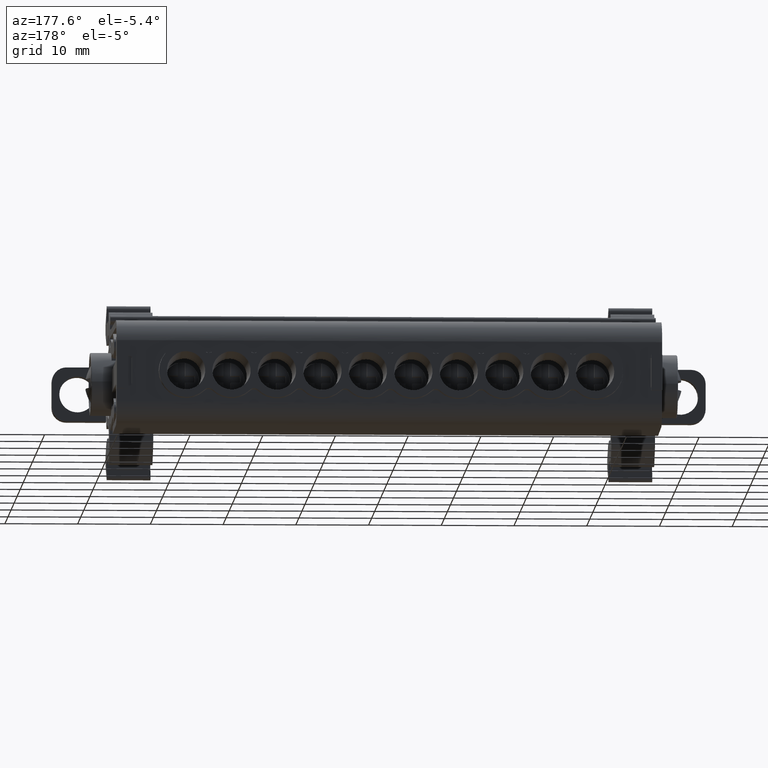
[diagram: clean part render]
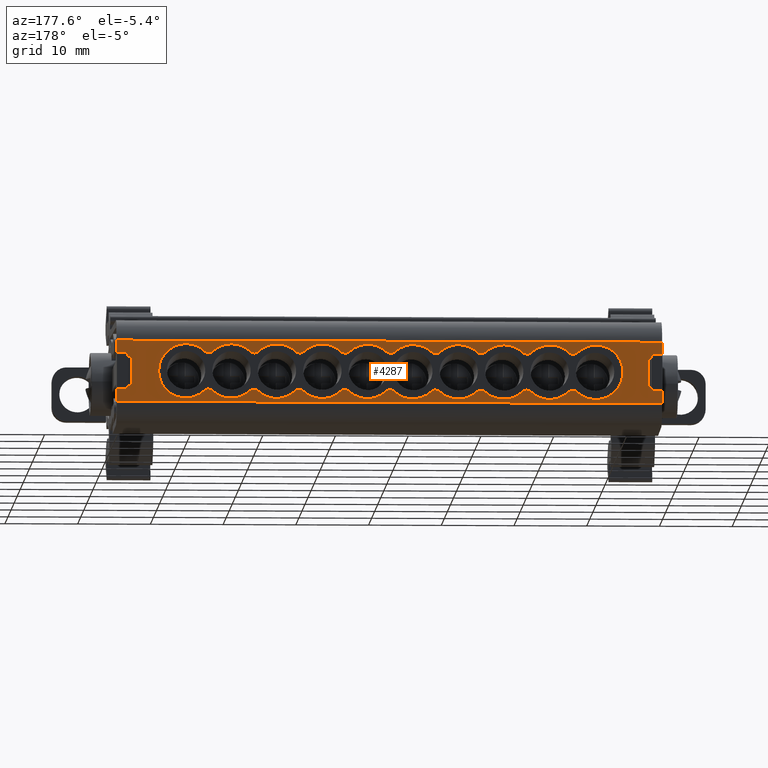
[diagram: same view with one face highlighted and labeled with its STEP entity id]
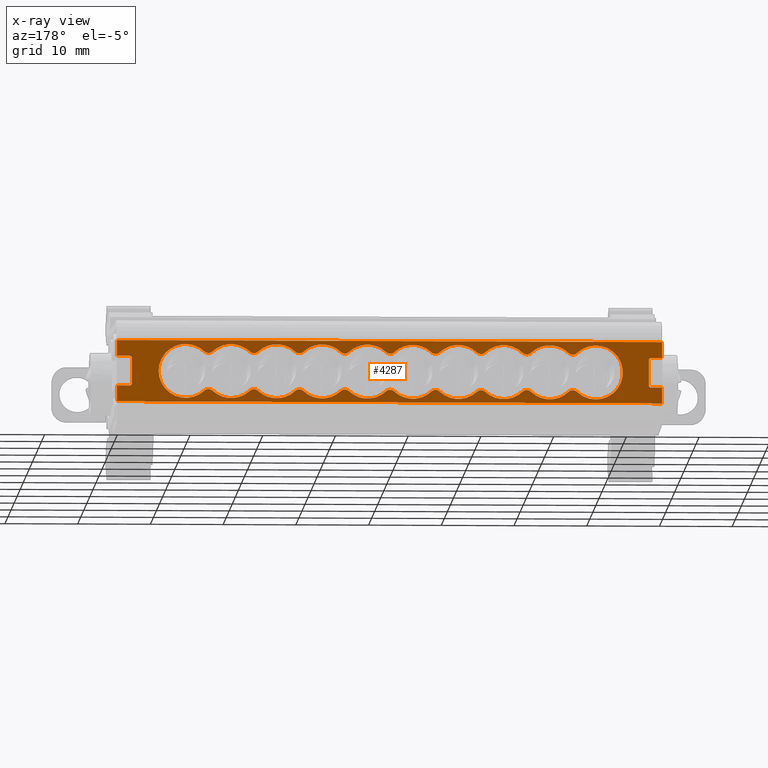
[diagram: x-ray of the same camera — body ghosted, the highlighted face saturated]
A machine part, auxiliary view. The second image highlights one B-rep face of the part: STEP entity #4287.
The next image is the same camera in x-ray: the body ghosted, the highlighted face saturated — about 0% of this face is hidden behind the body in this view.
In plain terms, the highlighted planar face has unit normal (-0, 1, -0).
Its self-contained STEP definition (entity closure, byte-faithful):
#583 = VECTOR ( 'NONE', #11730, 1000.000000000000000 ) ;
#595 = VECTOR ( 'NONE', #35188, 1000.000000000000000 ) ;
#615 = CIRCLE ( 'NONE', #646, 3.707075701093437200 ) ;
#616 = AXIS2_PLACEMENT_3D ( 'NONE', #34018, #33999, #34044 ) ;
#617 = VECTOR ( 'NONE', #35363, 1000.000000000000000 ) ;
#620 = AXIS2_PLACEMENT_3D ( 'NONE', #35354, #35378, #35355 ) ;
#622 = CIRCLE ( 'NONE', #636, 3.724056959419630400 ) ;
#626 = CIRCLE ( 'NONE', #632, 3.724056959419797000 ) ;
#627 = AXIS2_PLACEMENT_3D ( 'NONE', #35176, #35177, #35186 ) ;
#628 = AXIS2_PLACEMENT_3D ( 'NONE', #34038, #34002, #33993 ) ;
#630 = VECTOR ( 'NONE', #35222, 1000.000000000000000 ) ;
#631 = CIRCLE ( 'NONE', #620, 3.715292753566079600 ) ;
#632 = AXIS2_PLACEMENT_3D ( 'NONE', #34015, #34035, #34009 ) ;
#634 = CIRCLE ( 'NONE', #616, 3.724056959423349700 ) ;
#635 = CIRCLE ( 'NONE', #657, 3.724056959419797000 ) ;
#636 = AXIS2_PLACEMENT_3D ( 'NONE', #35307, #35327, #35301 ) ;
#637 = CIRCLE ( 'NONE', #640, 3.724056959423599300 ) ;
#638 = VECTOR ( 'NONE', #35317, 1000.000000000000000 ) ;
#639 = AXIS2_PLACEMENT_3D ( 'NONE', #35384, #35351, #35388 ) ;
#640 = AXIS2_PLACEMENT_3D ( 'NONE', #34047, #34054, #34080 ) ;
#644 = VECTOR ( 'NONE', #35318, 1000.000000000000000 ) ;
#646 = AXIS2_PLACEMENT_3D ( 'NONE', #35383, #35372, #35387 ) ;
#647 = VECTOR ( 'NONE', #35252, 1000.000000000000000 ) ;
#648 = VECTOR ( 'NONE', #35321, 1000.000000000000000 ) ;
#649 = CIRCLE ( 'NONE', #627, 3.724056959423599300 ) ;
#652 = CIRCLE ( 'NONE', #639, 3.724056959423183200 ) ;
#657 = AXIS2_PLACEMENT_3D ( 'NONE', #34055, #34094, #34083 ) ;
#658 = CIRCLE ( 'NONE', #660, 3.724056959423349700 ) ;
#660 = AXIS2_PLACEMENT_3D ( 'NONE', #34060, #34049, #34053 ) ;
#664 = CIRCLE ( 'NONE', #674, 3.724056959420019000 ) ;
#672 = VECTOR ( 'NONE', #35334, 1000.000000000000000 ) ;
#673 = CIRCLE ( 'NONE', #628, 3.724056959420019000 ) ;
#674 = AXIS2_PLACEMENT_3D ( 'NONE', #35305, #35342, #35338 ) ;
#678 = CIRCLE ( 'NONE', #692, 3.724056959419630400 ) ;
#681 = AXIS2_PLACEMENT_3D ( 'NONE', #34174, #34195, #34196 ) ;
#683 = CIRCLE ( 'NONE', #719, 3.724056959423349700 ) ;
#685 = CIRCLE ( 'NONE', #731, 3.724056959420213500 ) ;
#691 = AXIS2_PLACEMENT_3D ( 'NONE', #34127, #34117, #34120 ) ;
#692 = AXIS2_PLACEMENT_3D ( 'NONE', #34221, #34214, #34225 ) ;
#704 = AXIS2_PLACEMENT_3D ( 'NONE', #34162, #34163, #34164 ) ;
#711 = CIRCLE ( 'NONE', #691, 3.724056959423183200 ) ;
#718 = CIRCLE ( 'NONE', #681, 3.715292753566079600 ) ;
#719 = AXIS2_PLACEMENT_3D ( 'NONE', #34183, #34191, #34159 ) ;
#720 = CIRCLE ( 'NONE', #704, 3.724056959419630400 ) ;
#731 = AXIS2_PLACEMENT_3D ( 'NONE', #34213, #34302, #34271 ) ;
#753 = AXIS2_PLACEMENT_3D ( 'NONE', #30891, #30854, #30856 ) ;
#765 = VECTOR ( 'NONE', #31636, 1000.000000000000000 ) ;
#773 = VECTOR ( 'NONE', #34559, 1000.000000000000000 ) ;
#790 = VECTOR ( 'NONE', #34539, 1000.000000000000000 ) ;
#3277 = EDGE_LOOP ( 'NONE', ( #20054, #20087, #20138, #20033, #20093, #20108, #20036, #20045, #20124, #20132, #20148, #20154, #20151, #20066, #20048, #20091 ) ) ;
#3285 = EDGE_LOOP ( 'NONE', ( #20070, #20092, #20052, #20112, #20133, #20103, #20086, #20123, #20081, #20077, #20053, #20039, #20080, #20076, #20044, #20035, #20156, #20067, #20085, #20090, #20101, #20055, #20040, #20063, #20074, #20064, #20058, #20038, #20057, #20051, #20078, #20089, #20056, #20117, #20034, #20082, #20050 ) ) ;
#3859 = EDGE_CURVE ( 'NONE', #12450, #12512, #11732, .T. ) ;
#3936 = EDGE_CURVE ( 'NONE', #12488, #12498, #35138, .T. ) ;
#3941 = EDGE_CURVE ( 'NONE', #12508, #12473, #22539, .T. ) ;
#3946 = EDGE_CURVE ( 'NONE', #12455, #12488, #22573, .T. ) ;
#3950 = EDGE_CURVE ( 'NONE', #12456, #12429, #649, .T. ) ;
#3959 = EDGE_CURVE ( 'NONE', #12409, #12466, #22590, .T. ) ;
#3963 = EDGE_CURVE ( 'NONE', #12494, #12435, #22578, .T. ) ;
#3974 = EDGE_CURVE ( 'NONE', #12426, #12500, #35225, .T. ) ;
#3980 = EDGE_CURVE ( 'NONE', #12493, #12455, #35213, .T. ) ;
#3982 = EDGE_CURVE ( 'NONE', #12429, #12397, #22579, .T. ) ;
#3984 = EDGE_CURVE ( 'NONE', #12419, #12502, #22542, .T. ) ;
#3988 = EDGE_CURVE ( 'NONE', #12412, #12431, #22549, .T. ) ;
#3990 = EDGE_CURVE ( 'NONE', #12457, #12428, #22544, .T. ) ;
#3997 = EDGE_CURVE ( 'NONE', #12501, #12508, #35263, .T. ) ;
#3999 = EDGE_CURVE ( 'NONE', #12498, #12426, #22641, .T. ) ;
#4000 = EDGE_CURVE ( 'NONE', #12500, #12450, #35340, .T. ) ;
#4002 = EDGE_CURVE ( 'NONE', #12473, #12412, #35310, .T. ) ;
#4005 = EDGE_CURVE ( 'NONE', #12466, #12430, #622, .T. ) ;
#4012 = EDGE_CURVE ( 'NONE', #12512, #12501, #35333, .T. ) ;
#4018 = EDGE_CURVE ( 'NONE', #12459, #12494, #664, .T. ) ;
#4021 = EDGE_CURVE ( 'NONE', #12430, #12456, #22598, .T. ) ;
#4024 = EDGE_CURVE ( 'NONE', #12502, #12409, #615, .T. ) ;
#4028 = EDGE_CURVE ( 'NONE', #12435, #12419, #631, .T. ) ;
#4035 = EDGE_CURVE ( 'NONE', #12397, #12457, #652, .T. ) ;
#4047 = EDGE_CURVE ( 'NONE', #12431, #12477, #35353, .T. ) ;
#4074 = EDGE_CURVE ( 'NONE', #12445, #12394, #22654, .T. ) ;
#4076 = EDGE_CURVE ( 'NONE', #12443, #12445, #673, .T. ) ;
#4077 = EDGE_CURVE ( 'NONE', #12428, #12465, #626, .T. ) ;
#4078 = EDGE_CURVE ( 'NONE', #12468, #12443, #22607, .T. ) ;
#4083 = EDGE_CURVE ( 'NONE', #12463, #12697, #634, .T. ) ;
#4090 = EDGE_CURVE ( 'NONE', #12390, #12444, #22649, .T. ) ;
#4091 = EDGE_CURVE ( 'NONE', #12475, #12469, #637, .T. ) ;
#4097 = EDGE_CURVE ( 'NONE', #12427, #33610, #635, .T. ) ;
#4098 = EDGE_CURVE ( 'NONE', #12465, #12462, #22618, .T. ) ;
#4102 = EDGE_CURVE ( 'NONE', #12470, #12407, #658, .T. ) ;
#4105 = EDGE_CURVE ( 'NONE', #12697, #12427, #22619, .T. ) ;
#4108 = EDGE_CURVE ( 'NONE', #33610, #12459, #22604, .T. ) ;
#4110 = EDGE_CURVE ( 'NONE', #12486, #12463, #22622, .T. ) ;
#4113 = EDGE_CURVE ( 'NONE', #12462, #12449, #711, .T. ) ;
#4116 = EDGE_CURVE ( 'NONE', #12444, #12468, #718, .T. ) ;
#4117 = EDGE_CURVE ( 'NONE', #12408, #12390, #720, .T. ) ;
#4120 = EDGE_CURVE ( 'NONE', #12394, #12505, #683, .T. ) ;
#4121 = EDGE_CURVE ( 'NONE', #12449, #12475, #22653, .T. ) ;
#4125 = EDGE_CURVE ( 'NONE', #12407, #8644, #22624, .T. ) ;
#4126 = EDGE_CURVE ( 'NONE', #12469, #12406, #22597, .T. ) ;
#4132 = EDGE_CURVE ( 'NONE', #12420, #12408, #22637, .T. ) ;
#4134 = EDGE_CURVE ( 'NONE', #12406, #12420, #678, .T. ) ;
#4137 = EDGE_CURVE ( 'NONE', #12505, #12470, #22631, .T. ) ;
#4138 = EDGE_CURVE ( 'NONE', #8633, #12486, #685, .T. ) ;
#4186 = EDGE_CURVE ( 'NONE', #33588, #12594, #34564, .T. ) ;
#4191 = EDGE_CURVE ( 'NONE', #12594, #12493, #34529, .T. ) ;
#4197 = EDGE_CURVE ( 'NONE', #12477, #33588, #31579, .T. ) ;
#4287 = ADVANCED_FACE ( 'NONE', ( #30890, #30889 ), #30878, .T. ) ;
#4989 = CARTESIAN_POINT ( 'NONE',  ( -241.4840053093626900, -98.87567566785256200, 138.2073934196323800 ) ) ;
#4992 = CARTESIAN_POINT ( 'NONE',  ( -205.1537004680982100, -98.87567566785199300, 138.2178920726600200 ) ) ;
#5006 = CARTESIAN_POINT ( 'NONE',  ( -230.1477986165620600, -98.87567566785219200, 138.2046588341173400 ) ) ;
#5008 = CARTESIAN_POINT ( 'NONE',  ( -216.5151712813793700, -98.87567566785229200, 138.2178856403042500 ) ) ;
#5021 = CARTESIAN_POINT ( 'NONE',  ( -248.9422994930332900, -98.87567566785261900, 143.6148436092848900 ) ) ;
#5045 = CARTESIAN_POINT ( 'NONE',  ( -265.4801691519043600, -98.87567566785338600, 142.9740905490492400 ) ) ;
#5046 = CARTESIAN_POINT ( 'NONE',  ( -217.6537009105884100, -98.87567566785206500, 143.6351978517853400 ) ) ;
#5047 = CARTESIAN_POINT ( 'NONE',  ( -254.0965735445457800, -98.87567566785271800, 138.2382405971584900 ) ) ;
#5048 = CARTESIAN_POINT ( 'NONE',  ( -217.6537009197033700, -98.87567566785212100, 138.2178916465520000 ) ) ;
#5051 = CARTESIAN_POINT ( 'NONE',  ( -205.1537004676827400, -98.87567566785212100, 143.6351974338811300 ) ) ;
#5053 = CARTESIAN_POINT ( 'NONE',  ( -236.3847709200609300, -98.87567566785243400, 143.6362070554185400 ) ) ;
#5056 = CARTESIAN_POINT ( 'NONE',  ( -228.9893745243800000, -98.87567566785242000, 138.2057309191654300 ) ) ;
#5059 = CARTESIAN_POINT ( 'NONE',  ( -254.0965735348592000, -98.87567566785273200, 143.6148489190655400 ) ) ;
#5060 = CARTESIAN_POINT ( 'NONE',  ( -235.2217510796880300, -98.87567566785246200, 143.6339064248771000 ) ) ;
#5061 = CARTESIAN_POINT ( 'NONE',  ( -241.4840053490534000, -98.87567566785254800, 143.6456960501642800 ) ) ;
#5063 = CARTESIAN_POINT ( 'NONE',  ( -242.6448698447762500, -98.87567566785251900, 143.6456928938420400 ) ) ;
#5065 = CARTESIAN_POINT ( 'NONE',  ( -255.2722999505552900, -98.87567566785251900, 138.2382454590466500 ) ) ;
#5066 = CARTESIAN_POINT ( 'NONE',  ( -242.6448698414794500, -98.87567566785242000, 138.2073966161767100 ) ) ;
#5067 = CARTESIAN_POINT ( 'NONE',  ( -210.2651713582998000, -98.87567566785222100, 138.2178857128817500 ) ) ;
#5073 = CARTESIAN_POINT ( 'NONE',  ( -236.3948703857649600, -98.87567566785229200, 138.2073961068388100 ) ) ;
#5074 = CARTESIAN_POINT ( 'NONE',  ( -222.7703735986051200, -98.87567566785240600, 138.2228037026283100 ) ) ;
#5075 = CARTESIAN_POINT ( 'NONE',  ( -265.1401691519033600, -98.87567566785340000, 142.6338833039884000 ) ) ;
#5076 = CARTESIAN_POINT ( 'NONE',  ( -248.9422994889987700, -98.87567566785249100, 138.2382459015163100 ) ) ;
#5082 = CARTESIAN_POINT ( 'NONE',  ( -193.7278296200914300, -98.87567566785199300, 142.9740905490496300 ) ) ;
#5086 = CARTESIAN_POINT ( 'NONE',  ( -223.9101567309762100, -98.87567566785223500, 138.2238500402457900 ) ) ;
#5089 = CARTESIAN_POINT ( 'NONE',  ( -265.1401691519033100, -98.87567566785341500, 139.2208049815486400 ) ) ;
#5093 = CARTESIAN_POINT ( 'NONE',  ( -235.2340052626522900, -98.87567566785250500, 138.2073933759210400 ) ) ;
#5095 = CARTESIAN_POINT ( 'NONE',  ( -193.7278296200914300, -98.87567566785203600, 138.8805977364864600 ) ) ;
#5096 = CARTESIAN_POINT ( 'NONE',  ( -247.7665732827941800, -98.87567566785266100, 143.6148491607074200 ) ) ;
#5100 = CARTESIAN_POINT ( 'NONE',  ( -228.9995021202350100, -98.87567566785237700, 143.6379062250219600 ) ) ;
#5101 = CARTESIAN_POINT ( 'NONE',  ( -255.2722999467670200, -98.87567566785269000, 143.6148440442534600 ) ) ;
#5102 = CARTESIAN_POINT ( 'NONE',  ( -211.4037009038758000, -98.87567566785215000, 143.6351978454457600 ) ) ;
#5103 = CARTESIAN_POINT ( 'NONE',  ( -223.9101567366387800, -98.87567566785232000, 143.6292394720277100 ) ) ;
#5105 = CARTESIAN_POINT ( 'NONE',  ( -191.9827637199364900, -98.87567566785203600, 136.6995057816686800 ) ) ;
#5116 = CARTESIAN_POINT ( 'NONE',  ( -191.9827637199364900, -98.87567566785203600, 138.8805977364866400 ) ) ;
#5118 = CARTESIAN_POINT ( 'NONE',  ( -247.7665732730046100, -98.87567566785259000, 138.2382403368458800 ) ) ;
#5123 = CARTESIAN_POINT ( 'NONE',  ( -191.9827637199364600, -98.87567566785203600, 142.9740905490488700 ) ) ;
#5126 = CARTESIAN_POINT ( 'NONE',  ( -266.9752350520587400, -98.87567566785284600, 138.8805977364864400 ) ) ;
#5133 = CARTESIAN_POINT ( 'NONE',  ( -266.9752350520586800, -98.87567566785284600, 136.6995057816686800 ) ) ;
#5137 = CARTESIAN_POINT ( 'NONE',  ( -222.7703735756510900, -98.87567566785232000, 143.6302858260526400 ) ) ;
#5138 = CARTESIAN_POINT ( 'NONE',  ( -194.0678296200914000, -98.87567566785205000, 139.2208049815488700 ) ) ;
#5140 = CARTESIAN_POINT ( 'NONE',  ( -266.9752350520587900, -98.87567566785284600, 142.9740905490486400 ) ) ;
#5149 = CARTESIAN_POINT ( 'NONE',  ( -211.4037004520035600, -98.87567566785210700, 138.2178920878462200 ) ) ;
#5154 = CARTESIAN_POINT ( 'NONE',  ( -230.1600825299446200, -98.87567566785239100, 143.6366673830999300 ) ) ;
#5158 = CARTESIAN_POINT ( 'NONE',  ( -265.4801691519033400, -98.87567566785341500, 138.8805977364866600 ) ) ;
#5159 = CARTESIAN_POINT ( 'NONE',  ( -204.0151739259856600, -98.87567566785215000, 143.6352013713300000 ) ) ;
#5169 = CARTESIAN_POINT ( 'NONE',  ( -194.0678296200913500, -98.87567566785203600, 142.6338833039886300 ) ) ;
#8633 = VERTEX_POINT ( 'NONE', #29388 ) ;
#8644 = VERTEX_POINT ( 'NONE', #29369 ) ;
#11722 = CARTESIAN_POINT ( 'NONE',  ( -116.7027637199363400, -98.87567566785119800, 136.6995057816686800 ) ) ;
#11730 = DIRECTION ( 'NONE',  ( -1.000000000000000000, -1.100060687039804000E-014, 0.0000000000000000000 ) ) ;
#11732 = LINE ( 'NONE', #11722, #583 ) ;
#12088 = AXIS2_PLACEMENT_3D ( 'NONE', #32483, #32501, #32484 ) ;
#12098 = CIRCLE ( 'NONE', #12088, 3.724056959420213500 ) ;
#12390 = VERTEX_POINT ( 'NONE', #5006 ) ;
#12394 = VERTEX_POINT ( 'NONE', #5008 ) ;
#12397 = VERTEX_POINT ( 'NONE', #5021 ) ;
#12406 = VERTEX_POINT ( 'NONE', #4989 ) ;
#12407 = VERTEX_POINT ( 'NONE', #4992 ) ;
#12408 = VERTEX_POINT ( 'NONE', #5093 ) ;
#12409 = VERTEX_POINT ( 'NONE', #5060 ) ;
#12412 = VERTEX_POINT ( 'NONE', #5075 ) ;
#12419 = VERTEX_POINT ( 'NONE', #5100 ) ;
#12420 = VERTEX_POINT ( 'NONE', #5073 ) ;
#12426 = VERTEX_POINT ( 'NONE', #5095 ) ;
#12427 = VERTEX_POINT ( 'NONE', #5102 ) ;
#12428 = VERTEX_POINT ( 'NONE', #5101 ) ;
#12429 = VERTEX_POINT ( 'NONE', #5096 ) ;
#12430 = VERTEX_POINT ( 'NONE', #5061 ) ;
#12431 = VERTEX_POINT ( 'NONE', #5045 ) ;
#12435 = VERTEX_POINT ( 'NONE', #5103 ) ;
#12443 = VERTEX_POINT ( 'NONE', #5074 ) ;
#12444 = VERTEX_POINT ( 'NONE', #5056 ) ;
#12445 = VERTEX_POINT ( 'NONE', #5048 ) ;
#12449 = VERTEX_POINT ( 'NONE', #5076 ) ;
#12450 = VERTEX_POINT ( 'NONE', #5105 ) ;
#12455 = VERTEX_POINT ( 'NONE', #5082 ) ;
#12456 = VERTEX_POINT ( 'NONE', #5063 ) ;
#12457 = VERTEX_POINT ( 'NONE', #5059 ) ;
#12459 = VERTEX_POINT ( 'NONE', #5046 ) ;
#12462 = VERTEX_POINT ( 'NONE', #5047 ) ;
#12463 = VERTEX_POINT ( 'NONE', #5051 ) ;
#12465 = VERTEX_POINT ( 'NONE', #5065 ) ;
#12466 = VERTEX_POINT ( 'NONE', #5053 ) ;
#12468 = VERTEX_POINT ( 'NONE', #5086 ) ;
#12469 = VERTEX_POINT ( 'NONE', #5066 ) ;
#12470 = VERTEX_POINT ( 'NONE', #5067 ) ;
#12473 = VERTEX_POINT ( 'NONE', #5089 ) ;
#12475 = VERTEX_POINT ( 'NONE', #5118 ) ;
#12477 = VERTEX_POINT ( 'NONE', #5140 ) ;
#12486 = VERTEX_POINT ( 'NONE', #5159 ) ;
#12488 = VERTEX_POINT ( 'NONE', #5169 ) ;
#12493 = VERTEX_POINT ( 'NONE', #5123 ) ;
#12494 = VERTEX_POINT ( 'NONE', #5137 ) ;
#12498 = VERTEX_POINT ( 'NONE', #5138 ) ;
#12500 = VERTEX_POINT ( 'NONE', #5116 ) ;
#12501 = VERTEX_POINT ( 'NONE', #5126 ) ;
#12502 = VERTEX_POINT ( 'NONE', #5154 ) ;
#12505 = VERTEX_POINT ( 'NONE', #5149 ) ;
#12508 = VERTEX_POINT ( 'NONE', #5158 ) ;
#12512 = VERTEX_POINT ( 'NONE', #5133 ) ;
#12594 = VERTEX_POINT ( 'NONE', #16395 ) ;
#12697 = VERTEX_POINT ( 'NONE', #15829 ) ;
#15829 = CARTESIAN_POINT ( 'NONE',  ( -210.2651713448934500, -98.87567566785220700, 143.6352038067074400 ) ) ;
#16395 = CARTESIAN_POINT ( 'NONE',  ( -191.9827637199364600, -98.87567566785203600, 145.1542328703783100 ) ) ;
#20033 = ORIENTED_EDGE ( 'NONE', *, *, #4012, .T. ) ;
#20034 = ORIENTED_EDGE ( 'NONE', *, *, #4110, .T. ) ;
#20035 = ORIENTED_EDGE ( 'NONE', *, *, #4098, .T. ) ;
#20036 = ORIENTED_EDGE ( 'NONE', *, *, #4002, .T. ) ;
#20038 = ORIENTED_EDGE ( 'NONE', *, *, #4074, .T. ) ;
#20039 = ORIENTED_EDGE ( 'NONE', *, *, #3982, .T. ) ;
#20040 = ORIENTED_EDGE ( 'NONE', *, *, #4117, .T. ) ;
#20044 = ORIENTED_EDGE ( 'NONE', *, *, #4077, .T. ) ;
#20045 = ORIENTED_EDGE ( 'NONE', *, *, #3988, .T. ) ;
#20048 = ORIENTED_EDGE ( 'NONE', *, *, #3936, .T. ) ;
#20050 = ORIENTED_EDGE ( 'NONE', *, *, #4105, .T. ) ;
#20051 = ORIENTED_EDGE ( 'NONE', *, *, #4137, .T. ) ;
#20052 = ORIENTED_EDGE ( 'NONE', *, *, #4018, .T. ) ;
#20053 = ORIENTED_EDGE ( 'NONE', *, *, #3950, .T. ) ;
#20054 = ORIENTED_EDGE ( 'NONE', *, *, #3974, .T. ) ;
#20055 = ORIENTED_EDGE ( 'NONE', *, *, #4132, .T. ) ;
#20056 = ORIENTED_EDGE ( 'NONE', *, *, #36934, .T. ) ;
#20057 = ORIENTED_EDGE ( 'NONE', *, *, #4120, .T. ) ;
#20058 = ORIENTED_EDGE ( 'NONE', *, *, #4076, .T. ) ;
#20063 = ORIENTED_EDGE ( 'NONE', *, *, #4090, .T. ) ;
#20064 = ORIENTED_EDGE ( 'NONE', *, *, #4078, .T. ) ;
#20066 = ORIENTED_EDGE ( 'NONE', *, *, #3946, .T. ) ;
#20067 = ORIENTED_EDGE ( 'NONE', *, *, #4121, .T. ) ;
#20070 = ORIENTED_EDGE ( 'NONE', *, *, #4097, .T. ) ;
#20074 = ORIENTED_EDGE ( 'NONE', *, *, #4116, .T. ) ;
#20076 = ORIENTED_EDGE ( 'NONE', *, *, #3990, .T. ) ;
#20077 = ORIENTED_EDGE ( 'NONE', *, *, #4021, .T. ) ;
#20078 = ORIENTED_EDGE ( 'NONE', *, *, #4102, .T. ) ;
#20080 = ORIENTED_EDGE ( 'NONE', *, *, #4035, .T. ) ;
#20081 = ORIENTED_EDGE ( 'NONE', *, *, #4005, .T. ) ;
#20082 = ORIENTED_EDGE ( 'NONE', *, *, #4083, .T. ) ;
#20085 = ORIENTED_EDGE ( 'NONE', *, *, #4091, .T. ) ;
#20086 = ORIENTED_EDGE ( 'NONE', *, *, #4024, .T. ) ;
#20087 = ORIENTED_EDGE ( 'NONE', *, *, #4000, .T. ) ;
#20089 = ORIENTED_EDGE ( 'NONE', *, *, #4125, .T. ) ;
#20090 = ORIENTED_EDGE ( 'NONE', *, *, #4126, .T. ) ;
#20091 = ORIENTED_EDGE ( 'NONE', *, *, #3999, .T. ) ;
#20092 = ORIENTED_EDGE ( 'NONE', *, *, #4108, .T. ) ;
#20093 = ORIENTED_EDGE ( 'NONE', *, *, #3997, .T. ) ;
#20101 = ORIENTED_EDGE ( 'NONE', *, *, #4134, .T. ) ;
#20103 = ORIENTED_EDGE ( 'NONE', *, *, #3984, .T. ) ;
#20108 = ORIENTED_EDGE ( 'NONE', *, *, #3941, .T. ) ;
#20112 = ORIENTED_EDGE ( 'NONE', *, *, #3963, .T. ) ;
#20117 = ORIENTED_EDGE ( 'NONE', *, *, #4138, .T. ) ;
#20123 = ORIENTED_EDGE ( 'NONE', *, *, #3959, .T. ) ;
#20124 = ORIENTED_EDGE ( 'NONE', *, *, #4047, .T. ) ;
#20132 = ORIENTED_EDGE ( 'NONE', *, *, #4197, .T. ) ;
#20133 = ORIENTED_EDGE ( 'NONE', *, *, #4028, .T. ) ;
#20138 = ORIENTED_EDGE ( 'NONE', *, *, #3859, .T. ) ;
#20148 = ORIENTED_EDGE ( 'NONE', *, *, #4186, .T. ) ;
#20151 = ORIENTED_EDGE ( 'NONE', *, *, #3980, .T. ) ;
#20154 = ORIENTED_EDGE ( 'NONE', *, *, #4191, .T. ) ;
#20156 = ORIENTED_EDGE ( 'NONE', *, *, #4113, .T. ) ;
#21342 = CARTESIAN_POINT ( 'NONE',  ( -266.9752350520587900, -98.87567566785284600, 145.1542328703783100 ) ) ;
#21343 = CARTESIAN_POINT ( 'NONE',  ( -216.5151740246833500, -98.87567566785227800, 143.6352012782039900 ) ) ;
#22539 = B_SPLINE_CURVE_WITH_KNOTS ( 'NONE', 3,
 ( #35162, #35178, #35147, #35158, #35167, #35148, #35163, #35140, #35150, #35143, #35153 ),
 .UNSPECIFIED., .F., .F.,
 ( 4, 2, 1, 2, 2, 4 ),
 ( 0.0000000000000000000, 0.4999999999998796500, 0.6249999999999569200, 0.6874999999999126300, 0.7499999999998685500, 1.000000000000000000 ),
 .UNSPECIFIED. ) ;
#22542 = B_SPLINE_CURVE_WITH_KNOTS ( 'NONE', 3,
 ( #35293, #35291, #35281, #35256, #35253, #35257, #35250, #35290 ),
 .UNSPECIFIED., .F., .F.,
 ( 4, 2, 2, 4 ),
 ( 0.0000000000000000000, 0.0003176505206342319000, 0.0006353010412684638100, 0.001270602082536927600 ),
 .UNSPECIFIED. ) ;
#22544 = B_SPLINE_CURVE_WITH_KNOTS ( 'NONE', 3,
 ( #35266, #35242, #35251, #35264, #35261, #35275, #35269, #35254 ),
 .UNSPECIFIED., .F., .F.,
 ( 4, 2, 2, 4 ),
 ( 0.0000000000000000000, 0.0003228451615200196800, 0.0006456903230400393600, 0.001291380646080078700 ),
 .UNSPECIFIED. ) ;
#22549 = B_SPLINE_CURVE_WITH_KNOTS ( 'NONE', 3,
 ( #35278, #35273, #35258, #35292, #35260, #35246, #35265, #35282, #35259, #35268, #35284 ),
 .UNSPECIFIED., .F., .F.,
 ( 4, 2, 1, 2, 2, 4 ),
 ( 0.0000000000000000000, 0.5000000000000988100, 0.6250000000000702800, 0.6875000000001407800, 0.7500000000002111600, 1.000000000000000000 ),
 .UNSPECIFIED. ) ;
#22573 = B_SPLINE_CURVE_WITH_KNOTS ( 'NONE', 3,
 ( #35151, #35154, #35182, #35156, #35157, #35164, #35165, #35168, #35190, #35185, #35175 ),
 .UNSPECIFIED., .F., .F.,
 ( 4, 2, 1, 2, 2, 4 ),
 ( 0.0000000000000000000, 0.5000000000000124300, 0.6250000000000958100, 0.6875000000001158000, 0.7500000000001357800, 1.000000000000000000 ),
 .UNSPECIFIED. ) ;
#22578 = B_SPLINE_CURVE_WITH_KNOTS ( 'NONE', 3,
 ( #35224, #35238, #35199, #35203, #35218, #35210, #35220, #35201 ),
 .UNSPECIFIED., .F., .F.,
 ( 4, 2, 2, 4 ),
 ( 0.0000000000000000000, 0.0003123925059088812300, 0.0006247850118177624700, 0.001249570023635608200 ),
 .UNSPECIFIED. ) ;
#22579 = B_SPLINE_CURVE_WITH_KNOTS ( 'NONE', 3,
 ( #35207, #35215, #35274, #35289, #35283, #35247, #35255, #35245 ),
 .UNSPECIFIED., .F., .F.,
 ( 4, 2, 2, 4 ),
 ( 0.0000000000000000000, 0.0003228450872861191900, 0.0006456901745722383700, 0.001291380349144476700 ),
 .UNSPECIFIED. ) ;
#22590 = B_SPLINE_CURVE_WITH_KNOTS ( 'NONE', 3,
 ( #35211, #35239, #35195, #35234, #35228, #35198, #35193, #35231 ),
 .UNSPECIFIED., .F., .F.,
 ( 4, 2, 2, 4 ),
 ( 0.0000000000000000000, 0.0003184968925821865300, 0.0006369937851643730600, 0.001273987570328746100 ),
 .UNSPECIFIED. ) ;
#22597 = B_SPLINE_CURVE_WITH_KNOTS ( 'NONE', 3,
 ( #34200, #34177, #34155, #34185, #34189, #34190, #34193, #34194 ),
 .UNSPECIFIED., .F., .F.,
 ( 4, 2, 2, 4 ),
 ( 0.0000000000000000000, 0.0003177633632545543500, 0.0006355267265091087000, 0.001271053453018217400 ),
 .UNSPECIFIED. ) ;
#22598 = B_SPLINE_CURVE_WITH_KNOTS ( 'NONE', 3,
 ( #35319, #35336, #35337, #35360, #35390, #35344, #35389, #35386 ),
 .UNSPECIFIED., .F., .F.,
 ( 4, 2, 2, 4 ),
 ( 0.0000000000000000000, 0.0003177633299902152600, 0.0006355266599804305200, 0.001271053319960944100 ),
 .UNSPECIFIED. ) ;
#22604 = B_SPLINE_CURVE_WITH_KNOTS ( 'NONE', 3,
 ( #34103, #34141, #34135, #34102, #34118, #34119, #34099, #34112 ),
 .UNSPECIFIED., .F., .F.,
 ( 4, 2, 2, 4 ),
 ( 0.0000000000000000000, 0.0003119808182244836700, 0.0006239616364489673400, 0.001247923272897934700 ),
 .UNSPECIFIED. ) ;
#22607 = B_SPLINE_CURVE_WITH_KNOTS ( 'NONE', 3,
 ( #34043, #34004, #34022, #34013, #34008, #34007, #34019, #34041 ),
 .UNSPECIFIED., .F., .F.,
 ( 4, 2, 2, 4 ),
 ( 0.0000000000000000000, 0.0003123931830961399200, 0.0006247863661922798500, 0.001249572732384642700 ),
 .UNSPECIFIED. ) ;
#22618 = B_SPLINE_CURVE_WITH_KNOTS ( 'NONE', 3,
 ( #34095, #34078, #34097, #34070, #34076, #34082, #34061, #34052 ),
 .UNSPECIFIED., .F., .F.,
 ( 4, 2, 2, 4 ),
 ( 0.0000000000000000000, 0.0003228452258674550500, 0.0006456904517349100900, 0.001291380903469654100 ),
 .UNSPECIFIED. ) ;
#22619 = B_SPLINE_CURVE_WITH_KNOTS ( 'NONE', 3,
 ( #34091, #34086, #34124, #34137, #34104, #34149, #34145, #34111 ),
 .UNSPECIFIED., .F., .F.,
 ( 4, 2, 2, 4 ),
 ( 0.0000000000000000000, 0.0003119816815611455400, 0.0006239633631222910800, 0.001247926726244499300 ),
 .UNSPECIFIED. ) ;
#22622 = B_SPLINE_CURVE_WITH_KNOTS ( 'NONE', 3,
 ( #34108, #34105, #34114, #34113, #34136, #34138, #34125, #34143 ),
 .UNSPECIFIED., .F., .F.,
 ( 4, 2, 2, 4 ),
 ( 0.0000000000000000000, 0.0003119806990258043100, 0.0006239613980516086300, 0.001247922796103217300 ),
 .UNSPECIFIED. ) ;
#22624 = B_SPLINE_CURVE_WITH_KNOTS ( 'NONE', 3,
 ( #34203, #34208, #34188, #34154, #34176, #34161, #34186, #34192 ),
 .UNSPECIFIED., .F., .F.,
 ( 4, 2, 2, 4 ),
 ( 0.0000000000000000000, 0.0003119807218126919200, 0.0006239614436253838500, 0.001247922887250850700 ),
 .UNSPECIFIED. ) ;
#22631 = B_SPLINE_CURVE_WITH_KNOTS ( 'NONE', 3,
 ( #34250, #34227, #34239, #34240, #34241, #34253, #34255, #34209 ),
 .UNSPECIFIED., .F., .F.,
 ( 4, 2, 2, 4 ),
 ( 0.0000000000000000000, 0.0003119816055896622000, 0.0006239632111793244100, 0.001247926422358648800 ),
 .UNSPECIFIED. ) ;
#22637 = B_SPLINE_CURVE_WITH_KNOTS ( 'NONE', 3,
 ( #34247, #34251, #34234, #34222, #34248, #34249, #34223, #34224 ),
 .UNSPECIFIED., .F., .F.,
 ( 4, 2, 2, 4 ),
 ( 0.0000000000000000000, 0.0003177635639419068900, 0.0006355271278838137700, 0.001271054255767544500 ),
 .UNSPECIFIED. ) ;
#22641 = B_SPLINE_CURVE_WITH_KNOTS ( 'NONE', 3,
 ( #35299, #35326, #35313, #35311, #35300, #35320, #35325, #35309, #35343, #35294, #35341 ),
 .UNSPECIFIED., .F., .F.,
 ( 4, 2, 1, 2, 2, 4 ),
 ( 0.0000000000000000000, 0.4999999999998966400, 0.6249999999998436800, 0.6874999999998388000, 0.7499999999998339100, 1.000000000000000000 ),
 .UNSPECIFIED. ) ;
#22649 = B_SPLINE_CURVE_WITH_KNOTS ( 'NONE', 3,
 ( #34030, #33995, #34011, #34031, #34012, #34032, #34033, #34014 ),
 .UNSPECIFIED., .F., .F.,
 ( 4, 2, 2, 4 ),
 ( 0.0000000000000000000, 0.0003169183089571131100, 0.0006338366179142262200, 0.001267673235828369600 ),
 .UNSPECIFIED. ) ;
#22653 = B_SPLINE_CURVE_WITH_KNOTS ( 'NONE', 3,
 ( #34167, #34205, #34199, #34198, #34169, #34153, #34170, #34157 ),
 .UNSPECIFIED., .F., .F.,
 ( 4, 2, 2, 4 ),
 ( 0.0000000000000000000, 0.0003228451604698646500, 0.0006456903209397293100, 0.001291380641879541700 ),
 .UNSPECIFIED. ) ;
#22654 = B_SPLINE_CURVE_WITH_KNOTS ( 'NONE', 3,
 ( #35439, #35441, #35393, #35403, #35413, #35406, #35407, #35410 ),
 .UNSPECIFIED., .F., .F.,
 ( 4, 2, 2, 4 ),
 ( 0.0000000000000000000, 0.0003119817913671376900, 0.0006239635827342753900, 0.001247927165468467900 ),
 .UNSPECIFIED. ) ;
#29369 = CARTESIAN_POINT ( 'NONE',  ( -204.0151739652795300, -98.87567566785215000, 138.2178881726835900 ) ) ;
#29388 = CARTESIAN_POINT ( 'NONE',  ( -197.7353823239371900, -98.87567566785209300, 140.9265447534687000 ) ) ;
#30854 = DIRECTION ( 'NONE',  ( -1.100060687039804000E-014, 1.000000000000000000, -1.091215453507147000E-029 ) ) ;
#30856 = DIRECTION ( 'NONE',  ( -1.000000000000000000, -1.100060687039804000E-014, 0.0000000000000000000 ) ) ;
#30878 = PLANE ( 'NONE',  #753 ) ;
#30889 = FACE_OUTER_BOUND ( 'NONE', #3277, .T. ) ;
#30890 = FACE_BOUND ( 'NONE', #3285, .T. ) ;
#30891 = CARTESIAN_POINT ( 'NONE',  ( -116.7027637199363400, -98.87567566785119800, 145.1550322596730800 ) ) ;
#31579 = LINE ( 'NONE', #31601, #765 ) ;
#31601 = CARTESIAN_POINT ( 'NONE',  ( -266.9752350520587900, -98.87567566785284600, 147.1937515509118600 ) ) ;
#31636 = DIRECTION ( 'NONE',  ( -9.454113442147763200E-015, -9.308883075014167300E-029, 1.000000000000000000 ) ) ;
#32483 = CARTESIAN_POINT ( 'NONE',  ( -201.4594392833574000, -98.87567566785213600, 140.9265447534687000 ) ) ;
#32484 = DIRECTION ( 'NONE',  ( -1.000000000000000000, -1.117957213788833500E-014, 0.0000000000000000000 ) ) ;
#32501 = DIRECTION ( 'NONE',  ( 1.100060687039804000E-014, -1.000000000000000000, 1.091215453507147000E-029 ) ) ;
#33588 = VERTEX_POINT ( 'NONE', #21342 ) ;
#33610 = VERTEX_POINT ( 'NONE', #21343 ) ;
#33993 = DIRECTION ( 'NONE',  ( -1.000000000000000000, -1.117957213788891900E-014, 0.0000000000000000000 ) ) ;
#33995 = CARTESIAN_POINT ( 'NONE',  ( -230.0694762110533400, -98.87567566785244800, 138.2777942521798600 ) ) ;
#33999 = DIRECTION ( 'NONE',  ( 1.100060687039804000E-014, -1.000000000000000000, 1.091215453507147000E-029 ) ) ;
#34002 = DIRECTION ( 'NONE',  ( 1.100060687039804000E-014, -1.000000000000000000, 1.091215453507147000E-029 ) ) ;
#34004 = CARTESIAN_POINT ( 'NONE',  ( -223.8333163935962500, -98.87567566785237700, 138.2963282069596300 ) ) ;
#34007 = CARTESIAN_POINT ( 'NONE',  ( -223.1312464884251500, -98.87567566785233500, 138.4499732930166300 ) ) ;
#34008 = CARTESIAN_POINT ( 'NONE',  ( -223.4448195813096200, -98.87567566785232000, 138.4501481835864100 ) ) ;
#34009 = DIRECTION ( 'NONE',  ( -1.000000000000000000, -1.117957213788958600E-014, 0.0000000000000000000 ) ) ;
#34011 = CARTESIAN_POINT ( 'NONE',  ( -229.9791345424440600, -98.87567566785247700, 138.3347685375070500 ) ) ;
#34012 = CARTESIAN_POINT ( 'NONE',  ( -229.6751369261442600, -98.87567566785247700, 138.4331581733344200 ) ) ;
#34013 = CARTESIAN_POINT ( 'NONE',  ( -223.5492227733033700, -98.87567566785229200, 138.4302966178155100 ) ) ;
#34014 = CARTESIAN_POINT ( 'NONE',  ( -228.9893745243800000, -98.87567566785242000, 138.2057309191654300 ) ) ;
#34015 = CARTESIAN_POINT ( 'NONE',  ( -257.8494392833569000, -98.87567566785276100, 140.9265447534687000 ) ) ;
#34018 = CARTESIAN_POINT ( 'NONE',  ( -207.7094392833574500, -98.87567566785220700, 140.9265447534687000 ) ) ;
#34019 = CARTESIAN_POINT ( 'NONE',  ( -222.9237530277788200, -98.87567566785236300, 138.3680819750360300 ) ) ;
#34022 = CARTESIAN_POINT ( 'NONE',  ( -223.7443793496856900, -98.87567566785233500, 138.3528302762774700 ) ) ;
#34030 = CARTESIAN_POINT ( 'NONE',  ( -230.1477986165620600, -98.87567566785219200, 138.2046588341173400 ) ) ;
#34031 = CARTESIAN_POINT ( 'NONE',  ( -229.7809285925256400, -98.87567566785249100, 138.4130468911301100 ) ) ;
#34032 = CARTESIAN_POINT ( 'NONE',  ( -229.3568295054621400, -98.87567566785246200, 138.4335186569807100 ) ) ;
#34033 = CARTESIAN_POINT ( 'NONE',  ( -229.1463257338253100, -98.87567566785246200, 138.3516714158743600 ) ) ;
#34035 = DIRECTION ( 'NONE',  ( 1.100060687039804000E-014, -1.000000000000000000, 1.091215453507147000E-029 ) ) ;
#34038 = CARTESIAN_POINT ( 'NONE',  ( -220.2094392833574800, -98.87567566785233500, 140.9265447534688700 ) ) ;
#34041 = CARTESIAN_POINT ( 'NONE',  ( -222.7703735986051200, -98.87567566785240600, 138.2228037026283100 ) ) ;
#34043 = CARTESIAN_POINT ( 'NONE',  ( -223.9101567309762100, -98.87567566785223500, 138.2238500402457900 ) ) ;
#34044 = DIRECTION ( 'NONE',  ( -1.000000000000000000, -1.117957213787892100E-014, 0.0000000000000000000 ) ) ;
#34047 = CARTESIAN_POINT ( 'NONE',  ( -245.1894392833569300, -98.87567566785261900, 140.9265447534688700 ) ) ;
#34049 = DIRECTION ( 'NONE',  ( 1.100060687039804000E-014, -1.000000000000000000, 1.091215453507147000E-029 ) ) ;
#34052 = CARTESIAN_POINT ( 'NONE',  ( -254.0965735445457800, -98.87567566785271800, 138.2382405971584900 ) ) ;
#34053 = DIRECTION ( 'NONE',  ( -1.000000000000000000, -1.117957213787892100E-014, 0.0000000000000000000 ) ) ;
#34054 = DIRECTION ( 'NONE',  ( 1.100060687039804000E-014, -1.000000000000000000, 1.091215453507147000E-029 ) ) ;
#34055 = CARTESIAN_POINT ( 'NONE',  ( -213.9594392833574300, -98.87567566785226300, 140.9265447534687000 ) ) ;
#34060 = CARTESIAN_POINT ( 'NONE',  ( -207.7094392833574500, -98.87567566785220700, 140.9265447534687000 ) ) ;
#34061 = CARTESIAN_POINT ( 'NONE',  ( -254.2541782401154900, -98.87567566785274700, 138.3893282272808300 ) ) ;
#34070 = CARTESIAN_POINT ( 'NONE',  ( -254.9006370328722000, -98.87567566785270400, 138.4537247637569800 ) ) ;
#34076 = CARTESIAN_POINT ( 'NONE',  ( -254.7926661555579500, -98.87567566785273200, 138.4745491600454600 ) ) ;
#34078 = CARTESIAN_POINT ( 'NONE',  ( -255.1934977002428000, -98.87567566785270400, 138.3137887830645800 ) ) ;
#34080 = DIRECTION ( 'NONE',  ( -1.000000000000000000, -1.117957213787817200E-014, 0.0000000000000000000 ) ) ;
#34082 = CARTESIAN_POINT ( 'NONE',  ( -254.4687960391797800, -98.87567566785271800, 138.4746522203694500 ) ) ;
#34083 = DIRECTION ( 'NONE',  ( -1.000000000000000000, -1.117957213788958600E-014, 0.0000000000000000000 ) ) ;
#34086 = CARTESIAN_POINT ( 'NONE',  ( -210.3418982684305800, -98.87567566785224900, 143.5628085303403600 ) ) ;
#34091 = CARTESIAN_POINT ( 'NONE',  ( -210.2651713448934500, -98.87567566785220700, 143.6352038067074400 ) ) ;
#34094 = DIRECTION ( 'NONE',  ( 1.100060687039804000E-014, -1.000000000000000000, 1.091215453507147000E-029 ) ) ;
#34095 = CARTESIAN_POINT ( 'NONE',  ( -255.2722999505552900, -98.87567566785251900, 138.2382454590466500 ) ) ;
#34097 = CARTESIAN_POINT ( 'NONE',  ( -255.1018702937168400, -98.87567566785270400, 138.3728017265463300 ) ) ;
#34099 = CARTESIAN_POINT ( 'NONE',  ( -217.5002462850023900, -98.87567566785234900, 143.4904073977636500 ) ) ;
#34102 = CARTESIAN_POINT ( 'NONE',  ( -216.8755599553962000, -98.87567566785224900, 143.4288827787506200 ) ) ;
#34103 = CARTESIAN_POINT ( 'NONE',  ( -216.5151740246833500, -98.87567566785227800, 143.6352012782039900 ) ) ;
#34104 = CARTESIAN_POINT ( 'NONE',  ( -210.7297971399640100, -98.87567566785220700, 143.4089897698639500 ) ) ;
#34105 = CARTESIAN_POINT ( 'NONE',  ( -204.0919006456905200, -98.87567566785217800, 143.5628062870446800 ) ) ;
#34108 = CARTESIAN_POINT ( 'NONE',  ( -204.0151739259856600, -98.87567566785215000, 143.6352013713300000 ) ) ;
#34111 = CARTESIAN_POINT ( 'NONE',  ( -211.4037009038758000, -98.87567566785215000, 143.6351978454457600 ) ) ;
#34112 = CARTESIAN_POINT ( 'NONE',  ( -217.6537009105884100, -98.87567566785206500, 143.6351978517853400 ) ) ;
#34113 = CARTESIAN_POINT ( 'NONE',  ( -204.3755596729743600, -98.87567566785220700, 143.4288828563240100 ) ) ;
#34114 = CARTESIAN_POINT ( 'NONE',  ( -204.1806920701231400, -98.87567566785222100, 143.5063505972884700 ) ) ;
#34117 = DIRECTION ( 'NONE',  ( 1.100060687039804000E-014, -1.000000000000000000, 1.091215453507147000E-029 ) ) ;
#34118 = CARTESIAN_POINT ( 'NONE',  ( -216.9797993787758800, -98.87567566785229200, 143.4089895312373200 ) ) ;
#34119 = CARTESIAN_POINT ( 'NONE',  ( -217.2929780054857600, -98.87567566785230600, 143.4088962139619800 ) ) ;
#34120 = DIRECTION ( 'NONE',  ( -1.000000000000000000, -1.117957213787942100E-014, 0.0000000000000000000 ) ) ;
#34124 = CARTESIAN_POINT ( 'NONE',  ( -210.4306894879499100, -98.87567566785223500, 143.5063519689923600 ) ) ;
#34125 = CARTESIAN_POINT ( 'NONE',  ( -205.0002457931728700, -98.87567566785222100, 143.4904071464164900 ) ) ;
#34127 = CARTESIAN_POINT ( 'NONE',  ( -251.5194392833568600, -98.87567566785269000, 140.9265447534688700 ) ) ;
#34135 = CARTESIAN_POINT ( 'NONE',  ( -216.6806922617925000, -98.87567566785226300, 143.5063504863906900 ) ) ;
#34136 = CARTESIAN_POINT ( 'NONE',  ( -204.4797990403559700, -98.87567566785217800, 143.4089895782752500 ) ) ;
#34137 = CARTESIAN_POINT ( 'NONE',  ( -210.6255575392473200, -98.87567566785223500, 143.4288833593885800 ) ) ;
#34138 = CARTESIAN_POINT ( 'NONE',  ( -204.7929775640728800, -98.87567566785217800, 143.4088961202206700 ) ) ;
#34141 = CARTESIAN_POINT ( 'NONE',  ( -216.5919007751488200, -98.87567566785227800, 143.5628061648852500 ) ) ;
#34143 = CARTESIAN_POINT ( 'NONE',  ( -205.1537004676827400, -98.87567566785212100, 143.6351974338811300 ) ) ;
#34145 = CARTESIAN_POINT ( 'NONE',  ( -211.2502458147771200, -98.87567566785223500, 143.4904069573124200 ) ) ;
#34149 = CARTESIAN_POINT ( 'NONE',  ( -211.0429768138494900, -98.87567566785220700, 143.4088957384036900 ) ) ;
#34153 = CARTESIAN_POINT ( 'NONE',  ( -248.1387955720572600, -98.87567566785273200, 138.4746520912809400 ) ) ;
#34154 = CARTESIAN_POINT ( 'NONE',  ( -204.7933133204459500, -98.87567566785220700, 138.4242080848304100 ) ) ;
#34155 = CARTESIAN_POINT ( 'NONE',  ( -242.4758513982570500, -98.87567566785259000, 138.3380088410517300 ) ) ;
#34157 = CARTESIAN_POINT ( 'NONE',  ( -247.7665732730046100, -98.87567566785259000, 138.2382403368458800 ) ) ;
#34159 = DIRECTION ( 'NONE',  ( -1.000000000000000000, -1.117957213787892100E-014, 0.0000000000000000000 ) ) ;
#34161 = CARTESIAN_POINT ( 'NONE',  ( -204.3758953692219500, -98.87567566785223500, 138.4441919435831500 ) ) ;
#34162 = CARTESIAN_POINT ( 'NONE',  ( -232.6894392833569000, -98.87567566785247700, 140.9265447534688700 ) ) ;
#34163 = DIRECTION ( 'NONE',  ( 1.100060687039804000E-014, -1.000000000000000000, 1.091215453507147000E-029 ) ) ;
#34164 = DIRECTION ( 'NONE',  ( -1.000000000000000000, -1.117957213789008700E-014, 0.0000000000000000000 ) ) ;
#34167 = CARTESIAN_POINT ( 'NONE',  ( -248.9422994889987700, -98.87567566785249100, 138.2382459015163100 ) ) ;
#34169 = CARTESIAN_POINT ( 'NONE',  ( -248.4626656268513000, -98.87567566785270400, 138.4745492248309200 ) ) ;
#34170 = CARTESIAN_POINT ( 'NONE',  ( -247.9241779304119900, -98.87567566785260500, 138.3893279303281400 ) ) ;
#34174 = CARTESIAN_POINT ( 'NONE',  ( -226.4594392833573700, -98.87567566785240600, 140.9265447534688700 ) ) ;
#34176 = CARTESIAN_POINT ( 'NONE',  ( -204.6890737375927100, -98.87567566785220700, 138.4441006527671300 ) ) ;
#34177 = CARTESIAN_POINT ( 'NONE',  ( -242.5664178566813400, -98.87567566785256200, 138.2808110765502600 ) ) ;
#34183 = CARTESIAN_POINT ( 'NONE',  ( -213.9594392833574300, -98.87567566785226300, 140.9265447534687000 ) ) ;
#34185 = CARTESIAN_POINT ( 'NONE',  ( -242.2771561996925100, -98.87567566785261900, 138.4165229532512200 ) ) ;
#34186 = CARTESIAN_POINT ( 'NONE',  ( -204.1686280602701800, -98.87567566785216400, 138.3626789598300500 ) ) ;
#34188 = CARTESIAN_POINT ( 'NONE',  ( -204.9881813946703100, -98.87567566785219200, 138.3467417192184400 ) ) ;
#34189 = CARTESIAN_POINT ( 'NONE',  ( -242.1710404636317800, -98.87567566785257600, 138.4366617564486700 ) ) ;
#34190 = CARTESIAN_POINT ( 'NONE',  ( -241.8519398203467900, -98.87567566785256200, 138.4367498158519000 ) ) ;
#34191 = DIRECTION ( 'NONE',  ( 1.100060687039804000E-014, -1.000000000000000000, 1.091215453507147000E-029 ) ) ;
#34192 = CARTESIAN_POINT ( 'NONE',  ( -204.0151739652795300, -98.87567566785215000, 138.2178881726835900 ) ) ;
#34193 = CARTESIAN_POINT ( 'NONE',  ( -241.6409093598164800, -98.87567566785253300, 138.3542234517163400 ) ) ;
#34194 = CARTESIAN_POINT ( 'NONE',  ( -241.4840053093626900, -98.87567566785256200, 138.2073934196323800 ) ) ;
#34195 = DIRECTION ( 'NONE',  ( 1.100060687039804000E-014, -1.000000000000000000, 1.091215453507147000E-029 ) ) ;
#34196 = DIRECTION ( 'NONE',  ( -1.000000000000000000, -1.120594423776755700E-014, 0.0000000000000000000 ) ) ;
#34198 = CARTESIAN_POINT ( 'NONE',  ( -248.5706364928964800, -98.87567566785256200, 138.4537249019831200 ) ) ;
#34199 = CARTESIAN_POINT ( 'NONE',  ( -248.7718697695427200, -98.87567566785257600, 138.3728020162513400 ) ) ;
#34200 = CARTESIAN_POINT ( 'NONE',  ( -242.6448698414794500, -98.87567566785242000, 138.2073966161767100 ) ) ;
#34203 = CARTESIAN_POINT ( 'NONE',  ( -205.1537004680982100, -98.87567566785199300, 138.2178920726600200 ) ) ;
#34205 = CARTESIAN_POINT ( 'NONE',  ( -248.8634971978512700, -98.87567566785264700, 138.3137891509855700 ) ) ;
#34208 = CARTESIAN_POINT ( 'NONE',  ( -205.0769734523686100, -98.87567566785216400, 138.2902869131253000 ) ) ;
#34209 = CARTESIAN_POINT ( 'NONE',  ( -210.2651713582998000, -98.87567566785222100, 138.2178857128817500 ) ) ;
#34213 = CARTESIAN_POINT ( 'NONE',  ( -201.4594392833574000, -98.87567566785213600, 140.9265447534687000 ) ) ;
#34214 = DIRECTION ( 'NONE',  ( 1.100060687039804000E-014, -1.000000000000000000, 1.091215453507147000E-029 ) ) ;
#34221 = CARTESIAN_POINT ( 'NONE',  ( -238.9394392833568800, -98.87567566785254800, 140.9265447534688700 ) ) ;
#34222 = CARTESIAN_POINT ( 'NONE',  ( -236.0271566701756000, -98.87567566785249100, 138.4165228407709400 ) ) ;
#34223 = CARTESIAN_POINT ( 'NONE',  ( -235.3909094112918900, -98.87567566785249100, 138.3542234998778600 ) ) ;
#34224 = CARTESIAN_POINT ( 'NONE',  ( -235.2340052626522900, -98.87567566785250500, 138.2073933759210400 ) ) ;
#34225 = DIRECTION ( 'NONE',  ( -1.000000000000000000, -1.117957213789008700E-014, 0.0000000000000000000 ) ) ;
#34227 = CARTESIAN_POINT ( 'NONE',  ( -211.3269732169929700, -98.87567566785220700, 138.2902871313466200 ) ) ;
#34234 = CARTESIAN_POINT ( 'NONE',  ( -236.2258519378587200, -98.87567566785249100, 138.3380085543976500 ) ) ;
#34239 = CARTESIAN_POINT ( 'NONE',  ( -211.2381808512500400, -98.87567566785222100, 138.3467420594707600 ) ) ;
#34240 = CARTESIAN_POINT ( 'NONE',  ( -211.0433121666772000, -98.87567566785220700, 138.4242084192654800 ) ) ;
#34241 = CARTESIAN_POINT ( 'NONE',  ( -210.9390722173097900, -98.87567566785216400, 138.4441008794195200 ) ) ;
#34247 = CARTESIAN_POINT ( 'NONE',  ( -236.3948703857649600, -98.87567566785229200, 138.2073961068388100 ) ) ;
#34248 = CARTESIAN_POINT ( 'NONE',  ( -235.9210408685479200, -98.87567566785250500, 138.4366617134435300 ) ) ;
#34249 = CARTESIAN_POINT ( 'NONE',  ( -235.6019400376393400, -98.87567566785247700, 138.4367499015772000 ) ) ;
#34250 = CARTESIAN_POINT ( 'NONE',  ( -211.4037004520035600, -98.87567566785210700, 138.2178920878462200 ) ) ;
#34251 = CARTESIAN_POINT ( 'NONE',  ( -236.3164184157749900, -98.87567566785247700, 138.2808106823474100 ) ) ;
#34253 = CARTESIAN_POINT ( 'NONE',  ( -210.6258930203860000, -98.87567566785217800, 138.4441914918452000 ) ) ;
#34255 = CARTESIAN_POINT ( 'NONE',  ( -210.4186258340305400, -98.87567566785222100, 138.3626768587792200 ) ) ;
#34271 = DIRECTION ( 'NONE',  ( -1.000000000000000000, -1.117957213788833500E-014, 0.0000000000000000000 ) ) ;
#34302 = DIRECTION ( 'NONE',  ( 1.100060687039804000E-014, -1.000000000000000000, 1.091215453507147000E-029 ) ) ;
#34529 = LINE ( 'NONE', #34531, #773 ) ;
#34531 = CARTESIAN_POINT ( 'NONE',  ( -191.9827637199364600, -98.87567566785203600, 147.1937515509120800 ) ) ;
#34539 = DIRECTION ( 'NONE',  ( 1.000000000000000000, 1.100060687039804000E-014, -0.0000000000000000000 ) ) ;
#34554 = CARTESIAN_POINT ( 'NONE',  ( -116.7027637199363400, -98.87567566785119800, 145.1542328703783100 ) ) ;
#34559 = DIRECTION ( 'NONE',  ( -4.519788888257536600E-015, -6.063257523198604200E-029, -1.000000000000000000 ) ) ;
#34564 = LINE ( 'NONE', #34554, #790 ) ;
#35138 = LINE ( 'NONE', #35160, #595 ) ;
#35140 = CARTESIAN_POINT ( 'NONE',  ( -265.1679296382765200, -98.87567566785281800, 139.0858770057587300 ) ) ;
#35143 = CARTESIAN_POINT ( 'NONE',  ( -265.1405297687250000, -98.87567566785281800, 139.1761172784200700 ) ) ;
#35147 = CARTESIAN_POINT ( 'NONE',  ( -265.3049658088629000, -98.87567566785283200, 138.9156027736581200 ) ) ;
#35148 = CARTESIAN_POINT ( 'NONE',  ( -265.1842120143373300, -98.87567566785284600, 139.0529206946162600 ) ) ;
#35150 = CARTESIAN_POINT ( 'NONE',  ( -265.1484870946044900, -98.87567566785281800, 139.1343744493994700 ) ) ;
#35151 = CARTESIAN_POINT ( 'NONE',  ( -193.7278296200914300, -98.87567566785199300, 142.9740905490496300 ) ) ;
#35153 = CARTESIAN_POINT ( 'NONE',  ( -265.1401691519033100, -98.87567566785341500, 139.2208049815486400 ) ) ;
#35154 = CARTESIAN_POINT ( 'NONE',  ( -193.8218544894061800, -98.87567566785206500, 142.9733308703164600 ) ) ;
#35156 = CARTESIAN_POINT ( 'NONE',  ( -193.9845491663350300, -98.87567566785206500, 142.8582863145059000 ) ) ;
#35157 = CARTESIAN_POINT ( 'NONE',  ( -194.0062405614100400, -98.87567566785206500, 142.8317496395339700 ) ) ;
#35158 = CARTESIAN_POINT ( 'NONE',  ( -265.2234496056592500, -98.87567566785284600, 138.9964019710313600 ) ) ;
#35160 = CARTESIAN_POINT ( 'NONE',  ( -194.0678296200913500, -98.87567566785205000, 145.1550322596730800 ) ) ;
#35162 = CARTESIAN_POINT ( 'NONE',  ( -265.4801691519033400, -98.87567566785341500, 138.8805977364866600 ) ) ;
#35163 = CARTESIAN_POINT ( 'NONE',  ( -265.1734357054682500, -98.87567566785284600, 139.0736743656114800 ) ) ;
#35164 = CARTESIAN_POINT ( 'NONE',  ( -194.0237867576567200, -98.87567566785206500, 142.8017675909212900 ) ) ;
#35165 = CARTESIAN_POINT ( 'NONE',  ( -194.0345630665260000, -98.87567566785207900, 142.7810139199259300 ) ) ;
#35167 = CARTESIAN_POINT ( 'NONE',  ( -265.2017582105838800, -98.87567566785281800, 139.0229386460035500 ) ) ;
#35168 = CARTESIAN_POINT ( 'NONE',  ( -194.0400691337182500, -98.87567566785205000, 142.7688112797780800 ) ) ;
#35175 = CARTESIAN_POINT ( 'NONE',  ( -194.0678296200913500, -98.87567566785203600, 142.6338833039886300 ) ) ;
#35176 = CARTESIAN_POINT ( 'NONE',  ( -245.1894392833569300, -98.87567566785261900, 140.9265447534688700 ) ) ;
#35177 = DIRECTION ( 'NONE',  ( 1.100060687039804000E-014, -1.000000000000000000, 1.091215453507147000E-029 ) ) ;
#35178 = CARTESIAN_POINT ( 'NONE',  ( -265.3861442825895600, -98.87567566785286000, 138.8813574152198100 ) ) ;
#35182 = CARTESIAN_POINT ( 'NONE',  ( -193.9030329631337100, -98.87567566785206500, 142.9390855118776900 ) ) ;
#35185 = CARTESIAN_POINT ( 'NONE',  ( -194.0674690032698800, -98.87567566785209300, 142.6785710071191900 ) ) ;
#35186 = DIRECTION ( 'NONE',  ( -1.000000000000000000, -1.117957213787817200E-014, 0.0000000000000000000 ) ) ;
#35188 = DIRECTION ( 'NONE',  ( 1.200403221493523500E-043, -1.091215453507147000E-029, -1.000000000000000000 ) ) ;
#35190 = CARTESIAN_POINT ( 'NONE',  ( -194.0595116773901600, -98.87567566785206500, 142.7203138361397500 ) ) ;
#35193 = CARTESIAN_POINT ( 'NONE',  ( -236.2280528985210100, -98.87567566785254800, 143.4884543313420700 ) ) ;
#35195 = CARTESIAN_POINT ( 'NONE',  ( -235.3912359369546400, -98.87567566785251900, 143.5030617513223200 ) ) ;
#35198 = CARTESIAN_POINT ( 'NONE',  ( -236.0166649907359600, -98.87567566785256200, 143.4051092824331300 ) ) ;
#35199 = CARTESIAN_POINT ( 'NONE',  ( -222.9358955853615500, -98.87567566785236300, 143.5009711138260100 ) ) ;
#35201 = CARTESIAN_POINT ( 'NONE',  ( -223.9101567366387800, -98.87567566785232000, 143.6292394720277100 ) ) ;
#35203 = CARTESIAN_POINT ( 'NONE',  ( -223.1309050484851200, -98.87567566785237700, 143.4231521798228900 ) ) ;
#35205 = CARTESIAN_POINT ( 'NONE',  ( -116.7027637199363400, -98.87567566785119800, 138.8805977364866400 ) ) ;
#35207 = CARTESIAN_POINT ( 'NONE',  ( -247.7665732827941800, -98.87567566785266100, 143.6148491607074200 ) ) ;
#35210 = CARTESIAN_POINT ( 'NONE',  ( -223.5488428178281600, -98.87567566785242000, 143.4027591193562600 ) ) ;
#35211 = CARTESIAN_POINT ( 'NONE',  ( -235.2217510796880300, -98.87567566785246200, 143.6339064248771000 ) ) ;
#35213 = LINE ( 'NONE', #35249, #647 ) ;
#35215 = CARTESIAN_POINT ( 'NONE',  ( -247.8453752454652500, -98.87567566785261900, 143.5393057148619100 ) ) ;
#35218 = CARTESIAN_POINT ( 'NONE',  ( -223.2352815400142000, -98.87567566785237700, 143.4031205033197400 ) ) ;
#35220 = CARTESIAN_POINT ( 'NONE',  ( -223.7564765458466000, -98.87567566785239100, 143.4842835923837500 ) ) ;
#35222 = DIRECTION ( 'NONE',  ( 1.000000000000000000, 1.100060687039804000E-014, -0.0000000000000000000 ) ) ;
#35224 = CARTESIAN_POINT ( 'NONE',  ( -222.7703735756510900, -98.87567566785232000, 143.6302858260526400 ) ) ;
#35225 = LINE ( 'NONE', #35205, #630 ) ;
#35228 = CARTESIAN_POINT ( 'NONE',  ( -235.6968784842671900, -98.87567566785254800, 143.4045680714538700 ) ) ;
#35231 = CARTESIAN_POINT ( 'NONE',  ( -236.3847709200609300, -98.87567566785243400, 143.6362070554185400 ) ) ;
#35234 = CARTESIAN_POINT ( 'NONE',  ( -235.5904539991131200, -98.87567566785250500, 143.4245951441205600 ) ) ;
#35238 = CARTESIAN_POINT ( 'NONE',  ( -222.8470625704230200, -98.87567566785234900, 143.5576473716439500 ) ) ;
#35239 = CARTESIAN_POINT ( 'NONE',  ( -235.3004015757759100, -98.87567566785246200, 143.5603411564138400 ) ) ;
#35242 = CARTESIAN_POINT ( 'NONE',  ( -254.1753755193794000, -98.87567566785271800, 143.5393054522485300 ) ) ;
#35245 = CARTESIAN_POINT ( 'NONE',  ( -248.9422994930332900, -98.87567566785261900, 143.6148436092848900 ) ) ;
#35246 = CARTESIAN_POINT ( 'NONE',  ( -265.3123871355433000, -98.87567566785283200, 142.9300208405400700 ) ) ;
#35247 = CARTESIAN_POINT ( 'NONE',  ( -248.5700750763418500, -98.87567566785266100, 143.3784353628570900 ) ) ;
#35249 = CARTESIAN_POINT ( 'NONE',  ( -116.7027637199363400, -98.87567566785119800, 142.9740905490488700 ) ) ;
#35250 = CARTESIAN_POINT ( 'NONE',  ( -230.0030371207704100, -98.87567566785244800, 143.4900978057935700 ) ) ;
#35251 = CARTESIAN_POINT ( 'NONE',  ( -254.2670019989961600, -98.87567566785277500, 143.4802912768276100 ) ) ;
#35252 = DIRECTION ( 'NONE',  ( -1.000000000000000000, -1.100060687039804000E-014, 0.0000000000000000000 ) ) ;
#35253 = CARTESIAN_POINT ( 'NONE',  ( -229.4729869484046700, -98.87567566785244800, 143.4083457773934600 ) ) ;
#35254 = CARTESIAN_POINT ( 'NONE',  ( -255.2722999467670200, -98.87567566785269000, 143.6148440442534600 ) ) ;
#35255 = CARTESIAN_POINT ( 'NONE',  ( -248.7846942233068400, -98.87567566785264700, 143.4637564493671100 ) ) ;
#35256 = CARTESIAN_POINT ( 'NONE',  ( -229.3669400135859500, -98.87567566785247700, 143.4285818277334100 ) ) ;
#35257 = CARTESIAN_POINT ( 'NONE',  ( -229.7919906504110900, -98.87567566785244800, 143.4078972772036300 ) ) ;
#35258 = CARTESIAN_POINT ( 'NONE',  ( -265.1751528649516600, -98.87567566785284600, 142.8091934412284200 ) ) ;
#35259 = CARTESIAN_POINT ( 'NONE',  ( -265.3937912708994400, -98.87567566785283200, 142.9657675361936800 ) ) ;
#35260 = CARTESIAN_POINT ( 'NONE',  ( -265.2824233511844300, -98.87567566785281800, 142.9124639491097900 ) ) ;
#35261 = CARTESIAN_POINT ( 'NONE',  ( -254.5762052516941200, -98.87567566785267600, 143.3785412497163300 ) ) ;
#35263 = LINE ( 'NONE', #35331, #638 ) ;
#35264 = CARTESIAN_POINT ( 'NONE',  ( -254.4682346819689900, -98.87567566785273200, 143.3993665251875000 ) ) ;
#35265 = CARTESIAN_POINT ( 'NONE',  ( -265.3331281639629000, -98.87567566785284600, 142.9408037180467700 ) ) ;
#35266 = CARTESIAN_POINT ( 'NONE',  ( -254.0965735348592000, -98.87567566785273200, 143.6148489190655400 ) ) ;
#35268 = CARTESIAN_POINT ( 'NONE',  ( -265.4355086713166500, -98.87567566785281800, 142.9737297124155800 ) ) ;
#35269 = CARTESIAN_POINT ( 'NONE',  ( -255.1146947560125100, -98.87567566785276100, 143.4637567365078000 ) ) ;
#35273 = CARTESIAN_POINT ( 'NONE',  ( -265.1409283678606200, -98.87567566785286000, 142.7279654856261900 ) ) ;
#35274 = CARTESIAN_POINT ( 'NONE',  ( -247.9370016449014400, -98.87567566785263300, 143.4802914772685100 ) ) ;
#35275 = CARTESIAN_POINT ( 'NONE',  ( -254.9000756006069000, -98.87567566785270400, 143.3784354877691700 ) ) ;
#35278 = CARTESIAN_POINT ( 'NONE',  ( -265.1401691519033600, -98.87567566785340000, 142.6338833039884000 ) ) ;
#35281 = CARTESIAN_POINT ( 'NONE',  ( -229.1683738315315400, -98.87567566785244800, 143.5072384801411800 ) ) ;
#35282 = CARTESIAN_POINT ( 'NONE',  ( -265.3453233705913600, -98.87567566785281800, 142.9463131414302900 ) ) ;
#35283 = CARTESIAN_POINT ( 'NONE',  ( -248.2462047760490400, -98.87567566785266100, 143.3785413124148800 ) ) ;
#35284 = CARTESIAN_POINT ( 'NONE',  ( -265.4801691519043600, -98.87567566785338600, 142.9740905490492400 ) ) ;
#35289 = CARTESIAN_POINT ( 'NONE',  ( -248.1382342533883000, -98.87567566785264700, 143.3993666394969500 ) ) ;
#35290 = CARTESIAN_POINT ( 'NONE',  ( -230.1600825299446200, -98.87567566785239100, 143.6366673830999300 ) ) ;
#35291 = CARTESIAN_POINT ( 'NONE',  ( -229.0778858513330600, -98.87567566785243400, 143.5644745335768800 ) ) ;
#35292 = CARTESIAN_POINT ( 'NONE',  ( -265.2559028416374600, -98.87567566785283200, 142.8907593321684400 ) ) ;
#35293 = CARTESIAN_POINT ( 'NONE',  ( -228.9995021202350100, -98.87567566785237700, 143.6379062250219600 ) ) ;
#35294 = CARTESIAN_POINT ( 'NONE',  ( -193.7724901006809800, -98.87567566785203600, 138.8809585731203000 ) ) ;
#35296 = CARTESIAN_POINT ( 'NONE',  ( -266.9752350520587900, -98.87567566785284600, 147.1937515509118600 ) ) ;
#35298 = CARTESIAN_POINT ( 'NONE',  ( -191.9827637199364600, -98.87567566785203600, 147.1937515509120800 ) ) ;
#35299 = CARTESIAN_POINT ( 'NONE',  ( -194.0678296200914000, -98.87567566785205000, 139.2208049815488700 ) ) ;
#35300 = CARTESIAN_POINT ( 'NONE',  ( -193.9255754208115500, -98.87567566785206500, 138.9422243364283800 ) ) ;
#35301 = DIRECTION ( 'NONE',  ( -1.000000000000000000, -1.117957213789008700E-014, 0.0000000000000000000 ) ) ;
#35305 = CARTESIAN_POINT ( 'NONE',  ( -220.2094392833574800, -98.87567566785233500, 140.9265447534688700 ) ) ;
#35307 = CARTESIAN_POINT ( 'NONE',  ( -238.9394392833568800, -98.87567566785254800, 140.9265447534688700 ) ) ;
#35309 = CARTESIAN_POINT ( 'NONE',  ( -193.8626754014035800, -98.87567566785209300, 138.9083751441063400 ) ) ;
#35310 = LINE ( 'NONE', #35339, #644 ) ;
#35311 = CARTESIAN_POINT ( 'NONE',  ( -193.9520959303581300, -98.87567566785206500, 138.9639289533694200 ) ) ;
#35313 = CARTESIAN_POINT ( 'NONE',  ( -194.0328459070414600, -98.87567566785205000, 139.0454948443068000 ) ) ;
#35317 = DIRECTION ( 'NONE',  ( 1.000000000000000000, 1.100060687039804000E-014, -0.0000000000000000000 ) ) ;
#35318 = DIRECTION ( 'NONE',  ( -1.200403221493523500E-043, 1.091215453507147000E-029, 1.000000000000000000 ) ) ;
#35319 = CARTESIAN_POINT ( 'NONE',  ( -241.4840053490534000, -98.87567566785254800, 143.6456960501642800 ) ) ;
#35320 = CARTESIAN_POINT ( 'NONE',  ( -193.8956116364527700, -98.87567566785207900, 138.9246674449976500 ) ) ;
#35321 = DIRECTION ( 'NONE',  ( -4.519788888257536600E-015, -6.063257523198604200E-029, -1.000000000000000000 ) ) ;
#35325 = CARTESIAN_POINT ( 'NONE',  ( -193.8748706080330400, -98.87567566785210700, 138.9138845674906100 ) ) ;
#35326 = CARTESIAN_POINT ( 'NONE',  ( -194.0670704041341400, -98.87567566785209300, 139.1267227999109900 ) ) ;
#35327 = DIRECTION ( 'NONE',  ( 1.100060687039804000E-014, -1.000000000000000000, 1.091215453507147000E-029 ) ) ;
#35331 = CARTESIAN_POINT ( 'NONE',  ( -116.7027637199363400, -98.87567566785119800, 138.8805977364864400 ) ) ;
#35333 = LINE ( 'NONE', #35296, #672 ) ;
#35334 = DIRECTION ( 'NONE',  ( -9.454113442147763200E-015, -9.308883075014167300E-029, 1.000000000000000000 ) ) ;
#35336 = CARTESIAN_POINT ( 'NONE',  ( -241.5624570498820600, -98.87567566785261900, 143.5722813376877400 ) ) ;
#35337 = CARTESIAN_POINT ( 'NONE',  ( -241.6530230463434900, -98.87567566785263300, 143.5150829233101000 ) ) ;
#35338 = DIRECTION ( 'NONE',  ( -1.000000000000000000, -1.117957213788891900E-014, 0.0000000000000000000 ) ) ;
#35339 = CARTESIAN_POINT ( 'NONE',  ( -265.1401691519033600, -98.87567566785283200, 145.1550322596730800 ) ) ;
#35340 = LINE ( 'NONE', #35298, #648 ) ;
#35341 = CARTESIAN_POINT ( 'NONE',  ( -193.7278296200914300, -98.87567566785203600, 138.8805977364864600 ) ) ;
#35342 = DIRECTION ( 'NONE',  ( 1.100060687039804000E-014, -1.000000000000000000, 1.091215453507147000E-029 ) ) ;
#35343 = CARTESIAN_POINT ( 'NONE',  ( -193.8142075010979700, -98.87567566785205000, 138.8889207493425900 ) ) ;
#35344 = CARTESIAN_POINT ( 'NONE',  ( -242.2769341328722100, -98.87567566785263300, 143.4163385235677600 ) ) ;
#35351 = DIRECTION ( 'NONE',  ( 1.100060687039804000E-014, -1.000000000000000000, 1.091215453507147000E-029 ) ) ;
#35353 = LINE ( 'NONE', #35362, #617 ) ;
#35354 = CARTESIAN_POINT ( 'NONE',  ( -226.4594392833573700, -98.87567566785240600, 140.9265447534688700 ) ) ;
#35355 = DIRECTION ( 'NONE',  ( -1.000000000000000000, -1.120594423776755700E-014, 0.0000000000000000000 ) ) ;
#35360 = CARTESIAN_POINT ( 'NONE',  ( -241.8517178428850800, -98.87567566785260500, 143.4365677128427600 ) ) ;
#35362 = CARTESIAN_POINT ( 'NONE',  ( -116.7027637199363400, -98.87567566785119800, 142.9740905490486400 ) ) ;
#35363 = DIRECTION ( 'NONE',  ( -1.000000000000000000, -1.100060687039804000E-014, 0.0000000000000000000 ) ) ;
#35372 = DIRECTION ( 'NONE',  ( 1.100060687039804000E-014, -1.000000000000000000, 1.091215453507147000E-029 ) ) ;
#35378 = DIRECTION ( 'NONE',  ( 1.100060687039804000E-014, -1.000000000000000000, 1.091215453507147000E-029 ) ) ;
#35383 = CARTESIAN_POINT ( 'NONE',  ( -232.6894392833569000, -98.87567566785247700, 140.9265447534688700 ) ) ;
#35384 = CARTESIAN_POINT ( 'NONE',  ( -251.5194392833568600, -98.87567566785269000, 140.9265447534688700 ) ) ;
#35386 = CARTESIAN_POINT ( 'NONE',  ( -242.6448698447762500, -98.87567566785251900, 143.6456928938420400 ) ) ;
#35387 = DIRECTION ( 'NONE',  ( -1.000000000000000000, -1.123078317800826600E-014, 0.0000000000000000000 ) ) ;
#35388 = DIRECTION ( 'NONE',  ( -1.000000000000000000, -1.117957213787942100E-014, 0.0000000000000000000 ) ) ;
#35389 = CARTESIAN_POINT ( 'NONE',  ( -242.4879652541779400, -98.87567566785259000, 143.4988633904149800 ) ) ;
#35390 = CARTESIAN_POINT ( 'NONE',  ( -241.9578334127107300, -98.87567566785261900, 143.4164283361987500 ) ) ;
#35393 = CARTESIAN_POINT ( 'NONE',  ( -217.4881813086500400, -98.87567566785230600, 138.3467418156457700 ) ) ;
#35403 = CARTESIAN_POINT ( 'NONE',  ( -217.2933125562494500, -98.87567566785230600, 138.4242083263918900 ) ) ;
#35406 = CARTESIAN_POINT ( 'NONE',  ( -216.8758931743450100, -98.87567566785229200, 138.4441915598095200 ) ) ;
#35407 = CARTESIAN_POINT ( 'NONE',  ( -216.6686258468991200, -98.87567566785229200, 138.3626768709069700 ) ) ;
#35410 = CARTESIAN_POINT ( 'NONE',  ( -216.5151712813793700, -98.87567566785229200, 138.2178856403042500 ) ) ;
#35413 = CARTESIAN_POINT ( 'NONE',  ( -217.1890725454046000, -98.87567566785230600, 138.4441008453196400 ) ) ;
#35439 = CARTESIAN_POINT ( 'NONE',  ( -217.6537009197033700, -98.87567566785212100, 138.2178916465520000 ) ) ;
#35441 = CARTESIAN_POINT ( 'NONE',  ( -217.5769736950653600, -98.87567566785230600, 138.2902867925765800 ) ) ;
#36934 = EDGE_CURVE ( 'NONE', #8644, #8633, #12098, .T. ) ;